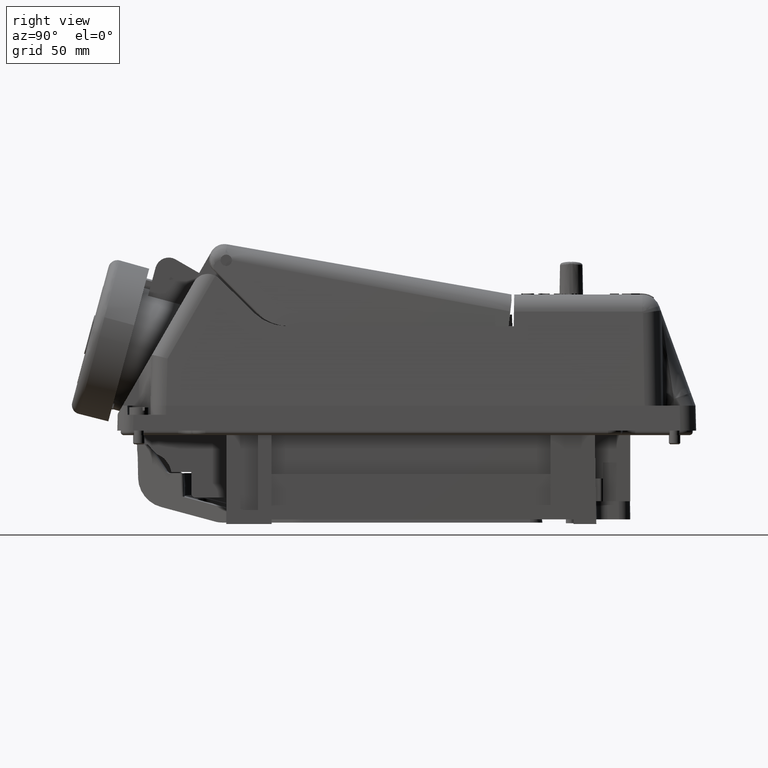
[diagram: clean part render]
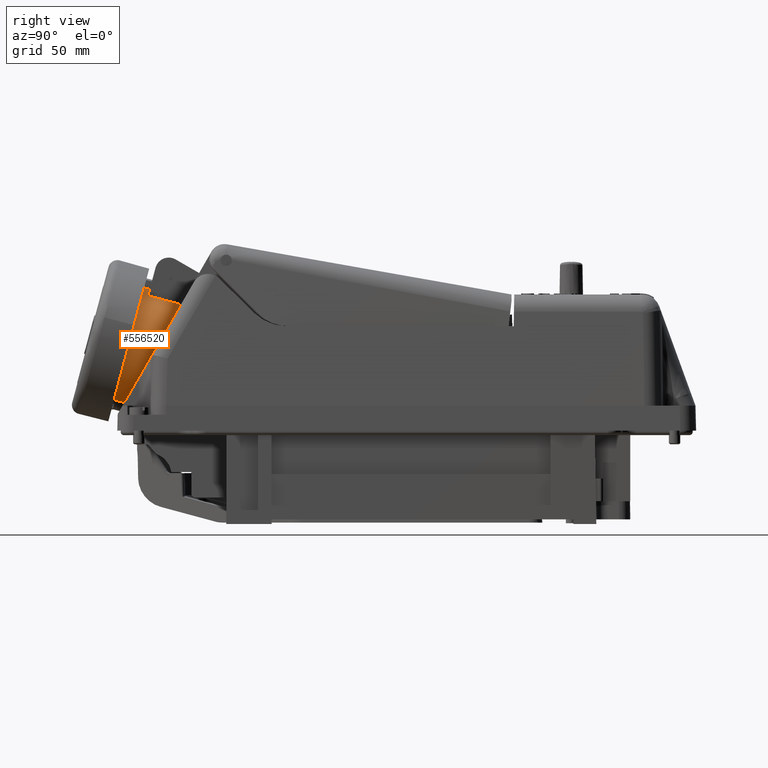
[diagram: same view with one face highlighted and labeled with its STEP entity id]
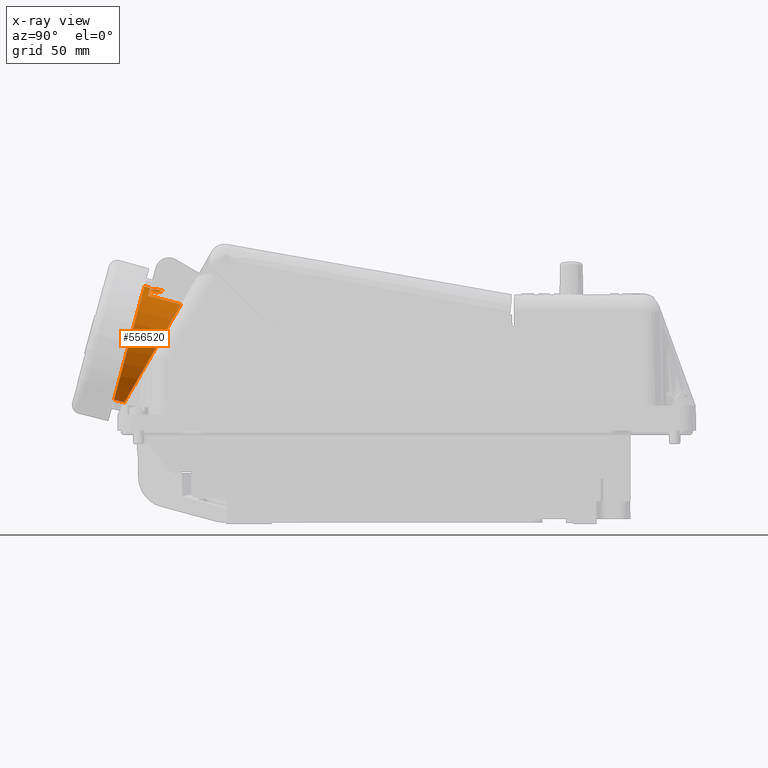
[diagram: x-ray of the same camera — body ghosted, the highlighted face saturated]
A machine part, right view. The second image highlights one B-rep face of the part: STEP entity #556520.
The next image is the same camera in x-ray: the body ghosted, the highlighted face saturated — about 0% of this face is hidden behind the body in this view.
In plain terms, the highlighted cylindrical surface (partial cylindrical patch) has radius 26.35 mm, axis along (-0, -0.9659, 0.2588).
Its self-contained STEP definition (entity closure, byte-faithful):
#38070=CARTESIAN_POINT('',(286.39999999999,-31.9687651178836,
35.5538335302601));
#38080=VERTEX_POINT('',#38070);
#38110=CARTESIAN_POINT('',(286.399999999989,-58.0439016059913,
42.5406436991774));
#38120=DIRECTION('',(-5.69658835407226E-14,-0.965925841065918,
0.258818989954562));
#38130=VECTOR('',#38120,1.);
#38140=LINE('',#38110,#38130);
#38150=CARTESIAN_POINT('',(286.399999999989,-46.4527915132001,
39.4348158197226));
#38160=VERTEX_POINT('',#38150);
#38170=EDGE_CURVE('',#38080,#38160,#38140,.T.);
#43870=CARTESIAN_POINT('',(264.599999999989,-45.8609088072732,
41.6437526548211));
#43880=VERTEX_POINT('',#43870);
#43910=CARTESIAN_POINT('',(272.999999999991,-52.3249746121372,
17.5195251382683));
#43920=DIRECTION('',(-5.69658835407226E-14,-0.965925841065918,
0.258818989954562));
#43930=DIRECTION('',(1.,-5.79018408640871E-14,4.00665810880599E-15));
#43940=AXIS2_PLACEMENT_3D('',#43910,#43920,#43930);
#43950=CIRCLE('',#43940,26.3500000000007);
#43960=CARTESIAN_POINT('',(259.599999999989,-46.4527915131991,
39.4348158197205));
#43970=VERTEX_POINT('',#43960);
#43980=EDGE_CURVE('',#43880,#43970,#43950,.T.);
#79090=CARTESIAN_POINT('',(280.995382669028,-45.8266263121457,
41.7716966976917));
#79100=VERTEX_POINT('',#79090);
#79130=CARTESIAN_POINT('',(272.999999999991,-52.3249746121427,
17.5195251382698));
#79140=DIRECTION('',(-5.69658835407226E-14,-0.965925841065918,
0.258818989954562));
#79150=DIRECTION('',(1.,-5.79018408640871E-14,4.00665810880599E-15));
#79160=AXIS2_PLACEMENT_3D('',#79130,#79140,#79150);
#79170=CIRCLE('',#79160,26.3500000000007);
#79180=CARTESIAN_POINT('',(265.004617330951,-45.8266263121451,
41.7716966976905));
#79190=VERTEX_POINT('',#79180);
#79200=EDGE_CURVE('',#79100,#79190,#79170,.T.);
#278210=CARTESIAN_POINT('',(272.999999999991,-43.7131326568161,
15.2119895679756));
#278220=DIRECTION('',(6.32178011026033E-14,0.866025432330981,
-0.499999950555935));
#278230=DIRECTION('',(1.58327731402279E-14,-0.499999950555935,
-0.866025432330981));
#278240=AXIS2_PLACEMENT_3D('',#278210,#278220,#278230);
#278250=ELLIPSE('',#278240,27.2795273538085,26.3500000000007);
#278260=CARTESIAN_POINT('',(266.279027530366,-56.9017436375853,
-7.63135774389266));
#278270=VERTEX_POINT('',#278260);
#278280=CARTESIAN_POINT('',(259.59999999999,-31.9687651178828,
35.553833530258));
#278290=VERTEX_POINT('',#278280);
#278300=EDGE_CURVE('',#278270,#278290,#278250,.T.);
#278370=CARTESIAN_POINT('',(279.720972469611,-56.9017436375867,
-7.63135774389349));
#278380=VERTEX_POINT('',#278370);
#278410=EDGE_CURVE('',#38080,#278380,#278250,.T.);
#319000=CARTESIAN_POINT('',(264.599999999989,-42.6163307852084,
40.7743707925729));
#319010=VERTEX_POINT('',#319000);
#319090=CARTESIAN_POINT('',(281.39999999999,-42.6163307852074,
40.7743707925736));
#319100=VERTEX_POINT('',#319090);
#319130=CARTESIAN_POINT('',(272.999999999989,-90.8647843420932,
27.8462336735124));
#319140=DIRECTION('',(-1.47121625805002E-14,-0.258819100250477,
0.965925811512216));
#319150=DIRECTION('',(-5.72844653675088E-14,-0.965925811512216,
-0.258819100250477));
#319160=AXIS2_PLACEMENT_3D('',#319130,#319140,#319150);
#319170=ELLIPSE('',#319160,52.7000000000016,26.3500000000007);
#319180=EDGE_CURVE('',#319100,#319010,#319170,.T.);
#431840=CARTESIAN_POINT('',(279.720972469611,-61.4186727782533,
-6.42105050478544));
#431850=VERTEX_POINT('',#431840);
#432090=CARTESIAN_POINT('',(266.110287696471,-61.4069972779552,
-6.37747693452093));
#432100=VERTEX_POINT('',#432090);
#432130=CARTESIAN_POINT('',(272.999999999991,-54.8243680408538,
18.1892354361165));
#432140=DIRECTION('',(-5.69658835407226E-14,-0.965925841065918,
0.258818989954562));
#432150=DIRECTION('',(1.,-5.79018408640871E-14,4.00665810880599E-15));
#432160=AXIS2_PLACEMENT_3D('',#432130,#432140,#432150);
#432170=CIRCLE('',#432160,26.3500000000007);
#432180=EDGE_CURVE('',#431850,#432100,#432170,.T.);
#502560=CARTESIAN_POINT('',(264.599999999989,-57.4520189000643,
44.7495805342759));
#502570=DIRECTION('',(-5.69658835407227E-14,-0.965925841065918,
0.258818989954562));
#502580=VECTOR('',#502570,1.);
#502590=LINE('',#502560,#502580);
#502600=EDGE_CURVE('',#319010,#43880,#502590,.T.);
#518540=CARTESIAN_POINT('',(259.599999999989,-58.0439016059902,
42.5406436991753));
#518550=DIRECTION('',(-5.69658835407226E-14,-0.965925841065918,
0.258818989954562));
#518560=VECTOR('',#518550,1.);
#518570=LINE('',#518540,#518560);
#518580=EDGE_CURVE('',#278290,#43970,#518570,.T.);
#530030=CARTESIAN_POINT('',(266.110287696471,-70.4987139420297,
-3.94135935291435));
#530040=DIRECTION('',(-5.69658835407226E-14,-0.965925841065918,
0.258818989954562));
#530050=VECTOR('',#530040,1.);
#530060=LINE('',#530030,#530050);
#530070=CARTESIAN_POINT('',(266.110287696471,-60.8394555313705,
-6.52954925246));
#530080=VERTEX_POINT('',#530070);
#530090=EDGE_CURVE('',#530080,#432100,#530060,.T.);
#530700=CARTESIAN_POINT('',(272.999999999991,-54.2568262942691,
18.0371631181775));
#530710=DIRECTION('',(-5.69658835407226E-14,-0.965925841065918,
0.258818989954562));
#530720=DIRECTION('',(1.,-5.79018408640873E-14,4.00665810880604E-15));
#530730=AXIS2_PLACEMENT_3D('',#530700,#530710,#530720);
#530740=CIRCLE('',#530730,26.3500000000007);
#530750=CARTESIAN_POINT('',(266.279027530366,-60.8511310316675,
-6.57312282272349));
#530760=VERTEX_POINT('',#530750);
#530770=EDGE_CURVE('',#530080,#530760,#530740,.T.);
#531260=CARTESIAN_POINT('',(279.72097246961,-70.5103894423278,
-3.98493292317882));
#531270=DIRECTION('',(-5.69658835407226E-14,-0.965925841065918,
0.258818989954562));
#531280=VECTOR('',#531270,1.);
#531290=LINE('',#531260,#531280);
#531300=EDGE_CURVE('',#278380,#431850,#531290,.T.);
#531330=CARTESIAN_POINT('',(266.279027530365,-70.5103894423268,
-3.98493292317783));
#531340=DIRECTION('',(-5.69658835407226E-14,-0.965925841065918,
0.258818989954562));
#531350=VECTOR('',#531340,1.);
#531360=LINE('',#531330,#531350);
#531370=EDGE_CURVE('',#278270,#530760,#531360,.T.);
#536290=CARTESIAN_POINT('',(272.999999999988,-94.3309679469487,
28.774994559147));
#536300=DIRECTION('',(7.68771496453299E-14,0.258819100250327,
-0.965925811512256));
#536310=DIRECTION('',(-2.13934933514699E-14,-0.965925811512256,
-0.258819100250327));
#536320=AXIS2_PLACEMENT_3D('',#536290,#536300,#536310);
#536330=ELLIPSE('',#536320,52.7000000000158,26.3500000000007);
#536340=EDGE_CURVE('',#79190,#79100,#536330,.T.);
#552370=CARTESIAN_POINT('',(281.399999999989,-45.8609088072738,
41.6437526548223));
#552380=VERTEX_POINT('',#552370);
#552410=CARTESIAN_POINT('',(281.399999999989,-57.4520189000649,
44.7495805342771));
#552420=DIRECTION('',(-5.69658835407227E-14,-0.965925841065918,
0.258818989954562));
#552430=VECTOR('',#552420,1.);
#552440=LINE('',#552410,#552430);
#552450=EDGE_CURVE('',#319100,#552380,#552440,.T.);
#556210=CARTESIAN_POINT('',(272.99999999999,-63.9160847049283,
20.6253530177231));
#556220=DIRECTION('',(-5.69658835407227E-14,-0.965925841065919,
0.258818989954562));
#556230=DIRECTION('',(1.,-5.79018408640873E-14,4.00665810880604E-15));
#556240=AXIS2_PLACEMENT_3D('',#556210,#556220,#556230);
#556250=CYLINDRICAL_SURFACE('',#556240,26.3500000000007);
#556260=ORIENTED_EDGE('',*,*,#536340,.T.);
#556270=ORIENTED_EDGE('',*,*,#79200,.T.);
#556280=EDGE_LOOP('',(#556270,#556260));
#556290=FACE_BOUND('',#556280,.T.);
#556300=ORIENTED_EDGE('',*,*,#278410,.F.);
#556310=ORIENTED_EDGE('',*,*,#531300,.F.);
#556320=ORIENTED_EDGE('',*,*,#432180,.F.);
#556330=ORIENTED_EDGE('',*,*,#530090,.T.);
#556340=ORIENTED_EDGE('',*,*,#530770,.F.);
#556350=ORIENTED_EDGE('',*,*,#531370,.T.);
#556360=ORIENTED_EDGE('',*,*,#278300,.F.);
#556370=ORIENTED_EDGE('',*,*,#518580,.F.);
#556380=ORIENTED_EDGE('',*,*,#43980,.T.);
#556390=ORIENTED_EDGE('',*,*,#502600,.T.);
#556400=ORIENTED_EDGE('',*,*,#319180,.T.);
#556410=ORIENTED_EDGE('',*,*,#552450,.F.);
#556420=CARTESIAN_POINT('',(272.999999999991,-52.3249746121372,
17.5195251382683));
#556430=DIRECTION('',(-5.69658835407226E-14,-0.965925841065918,
0.258818989954562));
#556440=DIRECTION('',(1.,-5.79018408640871E-14,4.00665810880599E-15));
#556450=AXIS2_PLACEMENT_3D('',#556420,#556430,#556440);
#556460=CIRCLE('',#556450,26.3500000000007);
#556470=EDGE_CURVE('',#38160,#552380,#556460,.T.);
#556480=ORIENTED_EDGE('',*,*,#556470,.T.);
#556490=ORIENTED_EDGE('',*,*,#38170,.T.);
#556500=EDGE_LOOP('',(#556490,#556480,#556410,#556400,#556390,#556380,
#556370,#556360,#556350,#556340,#556330,#556320,#556310,#556300));
#556510=FACE_OUTER_BOUND('',#556500,.T.);
#556520=ADVANCED_FACE('',(#556290,#556510),#556250,.T.);